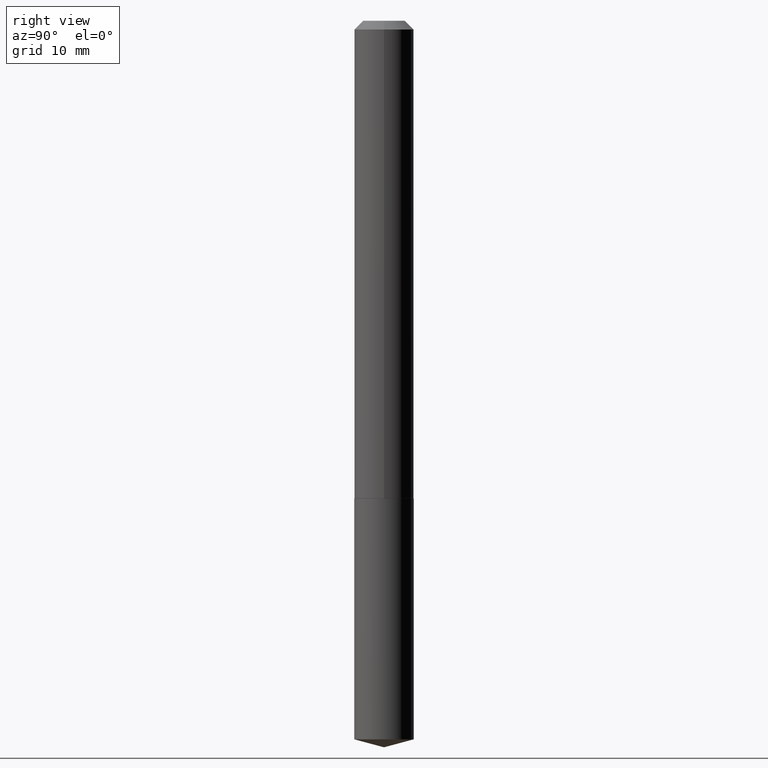
[diagram: clean part render]
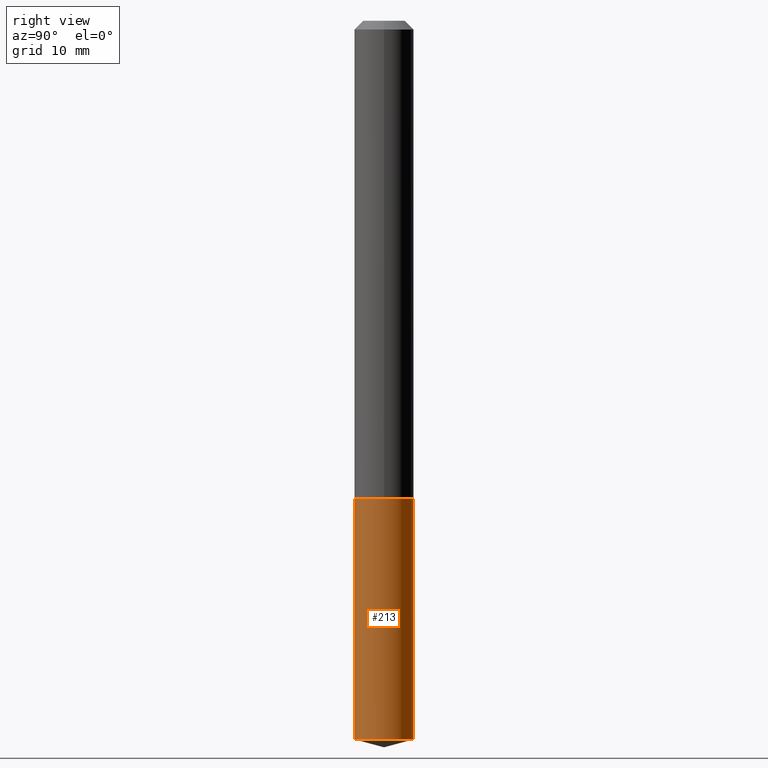
[diagram: same view with one face highlighted and labeled with its STEP entity id]
A machine part, right view. The second image highlights one B-rep face of the part: STEP entity #213.
In plain terms, the highlighted cylindrical surface (edge-blend (fillet) strip) has radius 2.7 mm, axis along (-0, 0, 1).
Its self-contained STEP definition (entity closure, byte-faithful):
#5 = DIRECTION ( 'NONE',  ( -6.982962677686265922E-15, -1.000000000000000000, 2.569941668545873170E-15 ) ) ;
#30 = DIRECTION ( 'NONE',  ( -2.445479163494150825E-29, 3.491466506587135831E-15, 1.000000000000000000 ) ) ;
#36 = CARTESIAN_POINT ( 'NONE',  ( 4.178328002247923804E-29, -5.965545015547398653E-15, -1.708599999999999897 ) ) ;
#38 = CARTESIAN_POINT ( 'NONE',  ( 7.553069281130489560E-16, 0.1062999999999909850, -2.569917000844572197 ) ) ;
#42 = AXIS2_PLACEMENT_3D ( 'NONE', #130, #281, #5 ) ;
#57 = CARTESIAN_POINT ( 'NONE',  ( 6.284660780976598715E-29, -8.972804475550304007E-15, -2.569917000844571753 ) ) ;
#60 = LINE ( 'NONE', #185, #377 ) ;
#66 = CARTESIAN_POINT ( 'NONE',  ( 7.553069281130281498E-16, 0.1062999999999940520, -1.708600000000000119 ) ) ;
#76 = EDGE_LOOP ( 'NONE', ( #149, #114, #79, #143 ) ) ;
#79 = ORIENTED_EDGE ( 'NONE', *, *, #371, .F. ) ;
#83 = AXIS2_PLACEMENT_3D ( 'NONE', #57, #274, #95 ) ;
#95 = DIRECTION ( 'NONE',  ( -6.982962677686265922E-15, -1.000000000000000000, 5.139883337091746339E-15 ) ) ;
#110 = EDGE_CURVE ( 'NONE', #293, #203, #206, .T. ) ;
#114 = ORIENTED_EDGE ( 'NONE', *, *, #241, .T. ) ;
#124 = CARTESIAN_POINT ( 'NONE',  ( 7.553069281130493504E-16, 0.1062999999999940243, -1.708600000000000119 ) ) ;
#129 = CYLINDRICAL_SURFACE ( 'NONE', #42, 0.1063000000000000056 ) ;
#130 = CARTESIAN_POINT ( 'NONE',  ( 4.178328002247923804E-29, -5.965545015547398653E-15, -1.708599999999999897 ) ) ;
#131 = CIRCLE ( 'NONE', #268, 0.1063000000000000056 ) ;
#143 = ORIENTED_EDGE ( 'NONE', *, *, #176, .F. ) ;
#148 = DIRECTION ( 'NONE',  ( -6.982962677686265922E-15, -1.000000000000000000, 2.569941668545873170E-15 ) ) ;
#149 = ORIENTED_EDGE ( 'NONE', *, *, #110, .T. ) ;
#160 = VECTOR ( 'NONE', #276, 39.37007874015748143 ) ;
#162 = FACE_OUTER_BOUND ( 'NONE', #76, .T. ) ;
#167 = VERTEX_POINT ( 'NONE', #124 ) ;
#176 = EDGE_CURVE ( 'NONE', #293, #234, #60, .T. ) ;
#185 = CARTESIAN_POINT ( 'NONE',  ( -7.422889326380084277E-16, -0.1063000000000059592, -1.708599999999999675 ) ) ;
#203 = VERTEX_POINT ( 'NONE', #38 ) ;
#206 = CIRCLE ( 'NONE', #83, 0.1063000000000000056 ) ;
#213 = ADVANCED_FACE ( 'NONE', ( #162 ), #129, .T. ) ;
#234 = VERTEX_POINT ( 'NONE', #303 ) ;
#241 = EDGE_CURVE ( 'NONE', #203, #167, #336, .T. ) ;
#254 = CARTESIAN_POINT ( 'NONE',  ( -7.422889326379869312E-16, -0.1063000000000089568, -2.569917000844570865 ) ) ;
#268 = AXIS2_PLACEMENT_3D ( 'NONE', #36, #343, #148 ) ;
#274 = DIRECTION ( 'NONE',  ( -2.445479163494150825E-29, 3.491466506587135831E-15, 1.000000000000000000 ) ) ;
#276 = DIRECTION ( 'NONE',  ( -2.445479163494150825E-29, 3.491466506587135831E-15, 1.000000000000000000 ) ) ;
#281 = DIRECTION ( 'NONE',  ( -2.445479163494150825E-29, 3.491466506587135831E-15, 1.000000000000000000 ) ) ;
#293 = VERTEX_POINT ( 'NONE', #254 ) ;
#303 = CARTESIAN_POINT ( 'NONE',  ( -7.422889326380084277E-16, -0.1063000000000059592, -1.708599999999999675 ) ) ;
#336 = LINE ( 'NONE', #66, #160 ) ;
#343 = DIRECTION ( 'NONE',  ( -2.445479163494150825E-29, 3.491466506587135831E-15, 1.000000000000000000 ) ) ;
#371 = EDGE_CURVE ( 'NONE', #234, #167, #131, .T. ) ;
#377 = VECTOR ( 'NONE', #30, 39.37007874015748143 ) ;